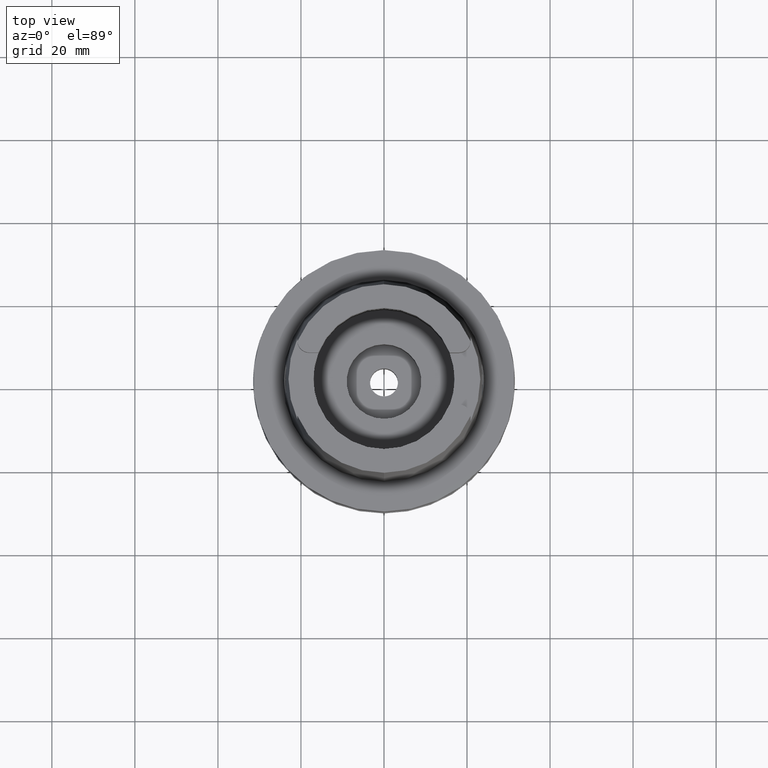
[diagram: clean part render]
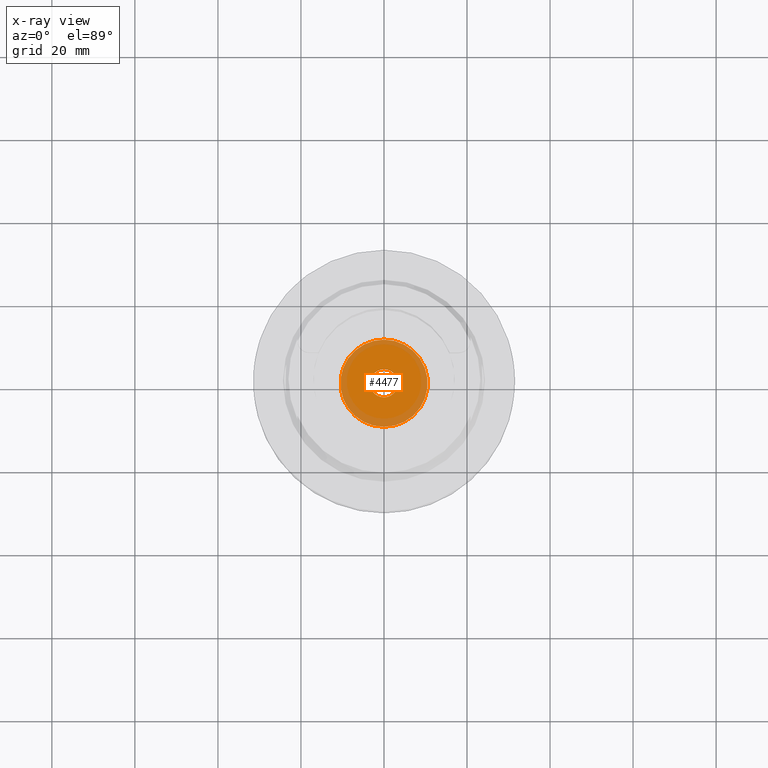
[diagram: x-ray — body ghosted, one internal face saturated and labeled with its STEP entity id]
A machine part, top view, then the same camera in x-ray: the body is ghosted and one INTERNAL B-rep face — a face not visible from any outside direction — is saturated and labeled: STEP entity #4477.
In plain terms, the highlighted planar face has unit normal (0, 0, 1).
Its self-contained STEP definition (entity closure, byte-faithful):
#832=CARTESIAN_POINT('',(0.E0,0.E0,-3.5E1));
#833=DIRECTION('',(0.E0,0.E0,1.E0));
#834=DIRECTION('',(0.E0,-1.E0,0.E0));
#835=AXIS2_PLACEMENT_3D('',#832,#833,#834);
#840=CARTESIAN_POINT('',(0.E0,0.E0,-3.5E1));
#841=DIRECTION('',(0.E0,0.E0,1.E0));
#842=DIRECTION('',(0.E0,1.E0,0.E0));
#843=AXIS2_PLACEMENT_3D('',#840,#841,#842);
#848=CARTESIAN_POINT('',(0.E0,0.E0,-3.5E1));
#849=DIRECTION('',(0.E0,0.E0,-1.E0));
#850=DIRECTION('',(0.E0,-1.E0,0.E0));
#851=AXIS2_PLACEMENT_3D('',#848,#849,#850);
#856=CARTESIAN_POINT('',(0.E0,0.E0,-3.5E1));
#857=DIRECTION('',(0.E0,0.E0,-1.E0));
#858=DIRECTION('',(0.E0,1.E0,0.E0));
#859=AXIS2_PLACEMENT_3D('',#856,#857,#858);
#3539=CARTESIAN_POINT('',(0.E0,3.375E0,-3.5E1));
#3540=VERTEX_POINT('',#3539);
#3541=CARTESIAN_POINT('',(0.E0,-3.375E0,-3.5E1));
#3542=VERTEX_POINT('',#3541);
#3543=CARTESIAN_POINT('',(0.E0,-1.05E1,-3.5E1));
#3544=CARTESIAN_POINT('',(0.E0,1.05E1,-3.5E1));
#3545=VERTEX_POINT('',#3543);
#3546=VERTEX_POINT('',#3544);
#4462=CARTESIAN_POINT('',(0.E0,0.E0,-3.5E1));
#4463=DIRECTION('',(0.E0,0.E0,1.E0));
#4464=DIRECTION('',(0.E0,1.E0,0.E0));
#4465=AXIS2_PLACEMENT_3D('',#4462,#4463,#4464);
#4466=PLANE('',#4465);
#4468=ORIENTED_EDGE('',*,*,#4467,.T.);
#4470=ORIENTED_EDGE('',*,*,#4469,.T.);
#4471=EDGE_LOOP('',(#4468,#4470));
#4472=FACE_OUTER_BOUND('',#4471,.F.);
#4473=ORIENTED_EDGE('',*,*,#4455,.T.);
#4474=ORIENTED_EDGE('',*,*,#4444,.T.);
#4475=EDGE_LOOP('',(#4473,#4474));
#4476=FACE_BOUND('',#4475,.F.);
#836=CIRCLE('',#835,1.05E1);
#844=CIRCLE('',#843,1.05E1);
#852=CIRCLE('',#851,3.375E0);
#860=CIRCLE('',#859,3.375E0);
#4444=EDGE_CURVE('',#3540,#3542,#860,.T.);
#4455=EDGE_CURVE('',#3542,#3540,#852,.T.);
#4467=EDGE_CURVE('',#3545,#3546,#836,.T.);
#4469=EDGE_CURVE('',#3546,#3545,#844,.T.);
#4477=ADVANCED_FACE('',(#4472,#4476),#4466,.F.);